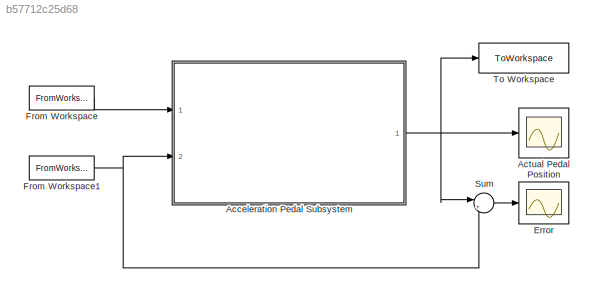
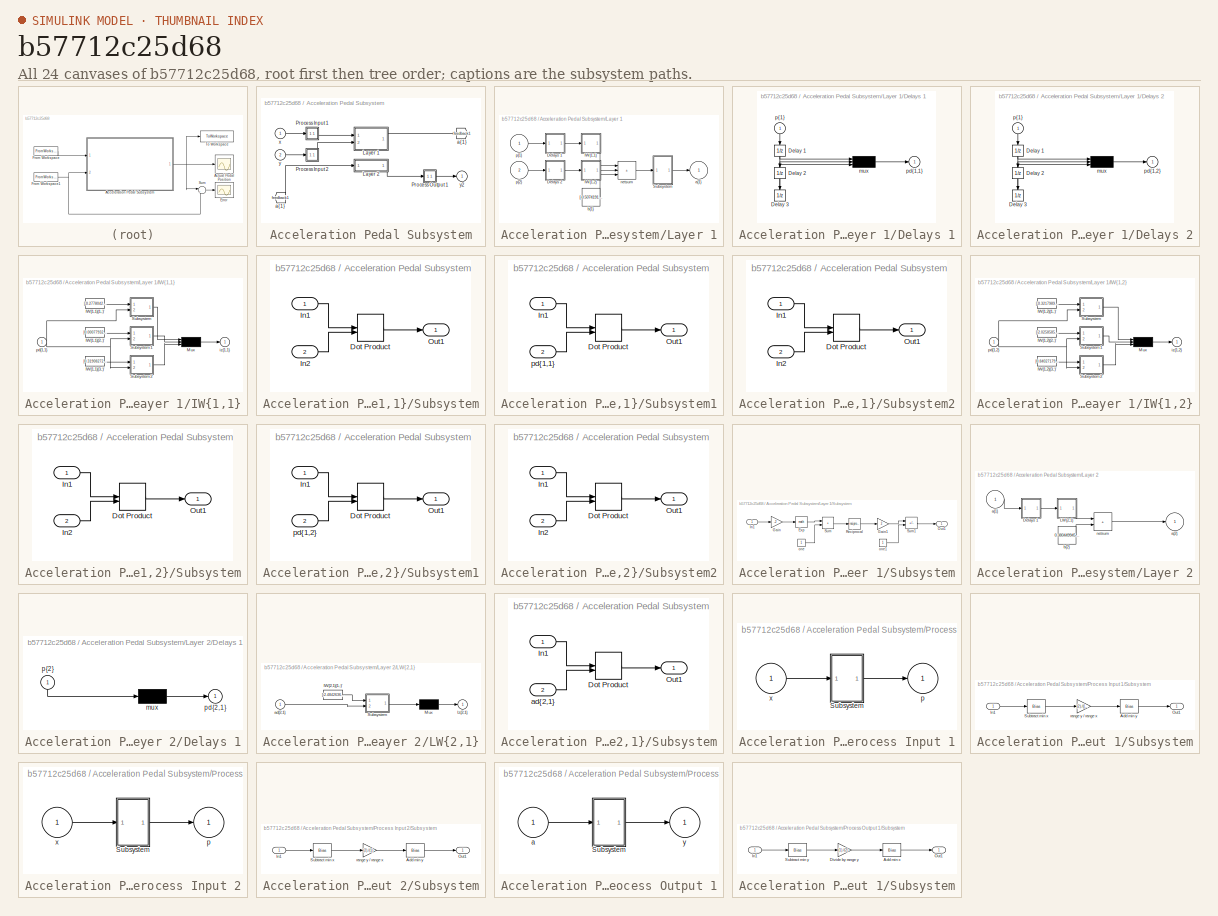
[diagram: thumbnail index - all 24 canvases of the model, root first then tree order]
MODEL slx_b57712c25d68
KIND model
CONFIG AbsTol = auto
CONFIG EnableMultiTasking = off
CONFIG FixedStep = auto
CONFIG MaxStep = auto
CONFIG MinStep = auto
CONFIG RelTol = 1e-3
CONFIG SampleTimeConstraint = Unconstrained
CONFIG SolverName = VariableStepAuto
CONFIG StartTime = 0.0
CONFIG StopTime = 25
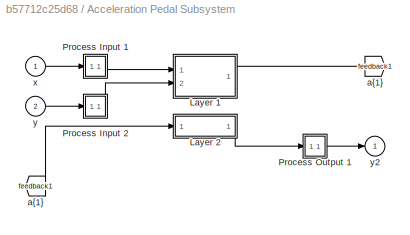
BLOCK [SubSystem] Acceleration Pedal Subsystem
  Ports = [2, 1]
  RequestExecContextInheritance = off
BLOCK [From] Acceleration Pedal Subsystem/ a{1} 
  GotoTag = feedback1
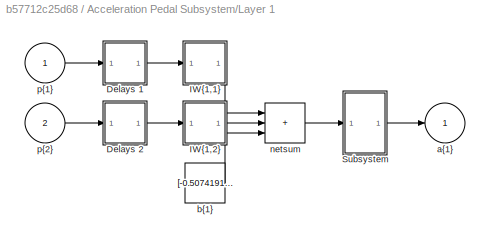
BLOCK [SubSystem] Acceleration Pedal Subsystem/Layer 1
  Ports = [2, 1]
  RequestExecContextInheritance = off
BLOCK [SubSystem] Acceleration Pedal Subsystem/Layer 1/Delays 1
  Ports = [1, 1]
  RequestExecContextInheritance = off
BLOCK [UnitDelay] Acceleration Pedal Subsystem/Layer 1/Delays 1/Delay 1
  InitialCondition = pi_input_1_delayed_1
  NameLocation = left
  SampleTime = -1
BLOCK [UnitDelay] Acceleration Pedal Subsystem/Layer 1/Delays 1/Delay 2
  InitialCondition = pi_input_1_delayed_2
  NameLocation = left
  SampleTime = -1
BLOCK [UnitDelay] Acceleration Pedal Subsystem/Layer 1/Delays 1/Delay 3
  InitialCondition = pi_input_1_delayed_3
  NameLocation = left
  SampleTime = -1
BLOCK [Mux] Acceleration Pedal Subsystem/Layer 1/Delays 1/mux
  Inputs = 3
  Ports = [3, 1]
BLOCK [Outport] Acceleration Pedal Subsystem/Layer 1/Delays 1/pd{1,1}
BLOCK [Inport] Acceleration Pedal Subsystem/Layer 1/Delays 1/p{1}
  NameLocation = left
  PortDimensions = 2
BLOCK [SubSystem] Acceleration Pedal Subsystem/Layer 1/Delays 2
  Ports = [1, 1]
  RequestExecContextInheritance = off
BLOCK [UnitDelay] Acceleration Pedal Subsystem/Layer 1/Delays 2/Delay 1
  InitialCondition = pi_input_2_delayed_1
  NameLocation = left
  SampleTime = -1
BLOCK [UnitDelay] Acceleration Pedal Subsystem/Layer 1/Delays 2/Delay 2
  InitialCondition = pi_input_2_delayed_2
  NameLocation = left
  SampleTime = -1
BLOCK [UnitDelay] Acceleration Pedal Subsystem/Layer 1/Delays 2/Delay 3
  InitialCondition = pi_input_2_delayed_3
  NameLocation = left
  SampleTime = -1
BLOCK [Mux] Acceleration Pedal Subsystem/Layer 1/Delays 2/mux
  Inputs = 3
  Ports = [3, 1]
BLOCK [Outport] Acceleration Pedal Subsystem/Layer 1/Delays 2/pd{1,2}
BLOCK [Inport] Acceleration Pedal Subsystem/Layer 1/Delays 2/p{1}
  NameLocation = left
  PortDimensions = 1
BLOCK [SubSystem] Acceleration Pedal Subsystem/Layer 1/IW{1,1}
  Ports = [1, 1]
  RequestExecContextInheritance = off
BLOCK [Constant] Acceleration Pedal Subsystem/Layer 1/IW{1,1}/IW{1,1}(1,:)'
  Value = [-0.27780427928569650930512580089271068572998046875;-0.530387799454654640385342645458877086639404296875;-0.1675928825842626646025479431045823730528354644775390625;0.01434177551750091816895604779347195290029048919677734375;0.135746573068681486429198912446736358106136322021484375;0.347706666370438510771379014840931631624698638916015625]
BLOCK [Constant] Acceleration Pedal Subsystem/Layer 1/IW{1,1}/IW{1,1}(2,:)'
  Value = [0.000779328165870853757819791685079735543695278465747833251953125;-0.5062741964820360873744675700436346232891082763671875;-0.12584321230279627013004528635065071284770965576171875;0.1840274498246561030168066963597084395587444305419921875;0.394298779481542849278952189706615172326564788818359375;1.0379498510368725394670263995067216455936431884765625]
BLOCK [Constant] Acceleration Pedal Subsystem/Layer 1/IW{1,1}/IW{1,1}(3,:)'
  Value = [0.31908272704775664241338972715311683714389801025390625;1.07785126730998825905771809630095958709716796875;0.339102541072019036949569681382854469120502471923828125;-0.140804755123989988607746681736898608505725860595703125;-0.4924515532211224400072069329326041042804718017578125;-1.0364187164545251018665794617845676839351654052734375]
BLOCK [Mux] Acceleration Pedal Subsystem/Layer 1/IW{1,1}/Mux
  Inputs = 3
  Ports = [3, 1]
BLOCK [SubSystem] Acceleration Pedal Subsystem/Layer 1/IW{1,1}/Subsystem
  Ports = [2, 1]
  RequestExecContextInheritance = off
BLOCK [DotProduct] Acceleration Pedal Subsystem/Layer 1/IW{1,1}/Subsystem/Dot Product
  OutDataTypeStr = Inherit: Inherit via internal rule
BLOCK [Inport] Acceleration Pedal Subsystem/Layer 1/IW{1,1}/Subsystem/In1
BLOCK [Inport] Acceleration Pedal Subsystem/Layer 1/IW{1,1}/Subsystem/In2
  Port = 2
BLOCK [Outport] Acceleration Pedal Subsystem/Layer 1/IW{1,1}/Subsystem/Out1
BLOCK [SubSystem] Acceleration Pedal Subsystem/Layer 1/IW{1,1}/Subsystem1
  Ports = [2, 1]
  RequestExecContextInheritance = off
BLOCK [DotProduct] Acceleration Pedal Subsystem/Layer 1/IW{1,1}/Subsystem1/Dot Product
  OutDataTypeStr = Inherit: Inherit via internal rule
BLOCK [Inport] Acceleration Pedal Subsystem/Layer 1/IW{1,1}/Subsystem1/In1
BLOCK [Outport] Acceleration Pedal Subsystem/Layer 1/IW{1,1}/Subsystem1/Out1
BLOCK [Inport] Acceleration Pedal Subsystem/Layer 1/IW{1,1}/Subsystem1/pd{1,1}
  Port = 2
BLOCK [SubSystem] Acceleration Pedal Subsystem/Layer 1/IW{1,1}/Subsystem2
  Ports = [2, 1]
  RequestExecContextInheritance = off
BLOCK [DotProduct] Acceleration Pedal Subsystem/Layer 1/IW{1,1}/Subsystem2/Dot Product
  OutDataTypeStr = Inherit: Inherit via internal rule
BLOCK [Inport] Acceleration Pedal Subsystem/Layer 1/IW{1,1}/Subsystem2/In1
BLOCK [Inport] Acceleration Pedal Subsystem/Layer 1/IW{1,1}/Subsystem2/In2
  Port = 2
BLOCK [Outport] Acceleration Pedal Subsystem/Layer 1/IW{1,1}/Subsystem2/Out1
BLOCK [Outport] Acceleration Pedal Subsystem/Layer 1/IW{1,1}/iz{1,1}
BLOCK [Inport] Acceleration Pedal Subsystem/Layer 1/IW{1,1}/pd{1,1}
  PortDimensions = 6
BLOCK [SubSystem] Acceleration Pedal Subsystem/Layer 1/IW{1,2}
  Ports = [1, 1]
  RequestExecContextInheritance = off
BLOCK [Constant] Acceleration Pedal Subsystem/Layer 1/IW{1,2}/IW{1,2}(1,:)'
  Value = [-0.321798974068076837351526364727760665118694305419921875;0.2717602710227631224171318535809405148029327392578125;0.0196096700164932156995600820437175570987164974212646484375]
BLOCK [Constant] Acceleration Pedal Subsystem/Layer 1/IW{1,2}/IW{1,2}(2,:)'
  Value = [-2.025858588581026520358818743261508643627166748046875;-0.2739092511861158651953473963658325374126434326171875;0.62536308620602742980310040366020984947681427001953125]
BLOCK [Constant] Acceleration Pedal Subsystem/Layer 1/IW{1,2}/IW{1,2}(3,:)'
  Value = [0.84027179617546499112989977220422588288784027099609375;-0.71546572748860015611427343174000270664691925048828125;-0.093688969355389895010688405818655155599117279052734375]
BLOCK [Mux] Acceleration Pedal Subsystem/Layer 1/IW{1,2}/Mux
  Inputs = 3
  Ports = [3, 1]
BLOCK [SubSystem] Acceleration Pedal Subsystem/Layer 1/IW{1,2}/Subsystem
  Ports = [2, 1]
  RequestExecContextInheritance = off
BLOCK [DotProduct] Acceleration Pedal Subsystem/Layer 1/IW{1,2}/Subsystem/Dot Product
  OutDataTypeStr = Inherit: Inherit via internal rule
BLOCK [Inport] Acceleration Pedal Subsystem/Layer 1/IW{1,2}/Subsystem/In1
BLOCK [Inport] Acceleration Pedal Subsystem/Layer 1/IW{1,2}/Subsystem/In2
  Port = 2
BLOCK [Outport] Acceleration Pedal Subsystem/Layer 1/IW{1,2}/Subsystem/Out1
BLOCK [SubSystem] Acceleration Pedal Subsystem/Layer 1/IW{1,2}/Subsystem1
  Ports = [2, 1]
  RequestExecContextInheritance = off
BLOCK [DotProduct] Acceleration Pedal Subsystem/Layer 1/IW{1,2}/Subsystem1/Dot Product
  OutDataTypeStr = Inherit: Inherit via internal rule
BLOCK [Inport] Acceleration Pedal Subsystem/Layer 1/IW{1,2}/Subsystem1/In1
BLOCK [Outport] Acceleration Pedal Subsystem/Layer 1/IW{1,2}/Subsystem1/Out1
BLOCK [Inport] Acceleration Pedal Subsystem/Layer 1/IW{1,2}/Subsystem1/pd{1,2}
  Port = 2
BLOCK [SubSystem] Acceleration Pedal Subsystem/Layer 1/IW{1,2}/Subsystem2
  Ports = [2, 1]
  RequestExecContextInheritance = off
BLOCK [DotProduct] Acceleration Pedal Subsystem/Layer 1/IW{1,2}/Subsystem2/Dot Product
  OutDataTypeStr = Inherit: Inherit via internal rule
BLOCK [Inport] Acceleration Pedal Subsystem/Layer 1/IW{1,2}/Subsystem2/In1
BLOCK [Inport] Acceleration Pedal Subsystem/Layer 1/IW{1,2}/Subsystem2/In2
  Port = 2
BLOCK [Outport] Acceleration Pedal Subsystem/Layer 1/IW{1,2}/Subsystem2/Out1
BLOCK [Outport] Acceleration Pedal Subsystem/Layer 1/IW{1,2}/iz{1,2}
BLOCK [Inport] Acceleration Pedal Subsystem/Layer 1/IW{1,2}/pd{1,2}
  PortDimensions = 3
BLOCK [SubSystem] Acceleration Pedal Subsystem/Layer 1/Subsystem
  Ports = [1, 1]
  RequestExecContextInheritance = off
BLOCK [Math] Acceleration Pedal Subsystem/Layer 1/Subsystem/Exp
  Ports = [1, 1]
  SignedPower = on
BLOCK [Gain] Acceleration Pedal Subsystem/Layer 1/Subsystem/Gain
  Gain = -2
  OutDataTypeStr = Inherit: Same as input
  ParamDataTypeStr = Inherit: Same as input
  SaturateOnIntegerOverflow = on
BLOCK [Gain] Acceleration Pedal Subsystem/Layer 1/Subsystem/Gain1
  Gain = 2
  OutDataTypeStr = Inherit: Same as input
  ParamDataTypeStr = Inherit: Same as input
  SaturateOnIntegerOverflow = on
BLOCK [Inport] Acceleration Pedal Subsystem/Layer 1/Subsystem/In1
BLOCK [Outport] Acceleration Pedal Subsystem/Layer 1/Subsystem/Out1
BLOCK [Math] Acceleration Pedal Subsystem/Layer 1/Subsystem/Reciprocal
  Operator = reciprocal
  Ports = [1, 1]
  SignedPower = on
BLOCK [Sum] Acceleration Pedal Subsystem/Layer 1/Subsystem/Sum
  IconShape = rectangular
  InputSameDT = on
  OutDataTypeStr = Inherit: Same as first input
  Ports = [2, 1]
  SaturateOnIntegerOverflow = on
BLOCK [Sum] Acceleration Pedal Subsystem/Layer 1/Subsystem/Sum1
  IconShape = rectangular
  InputSameDT = on
  Inputs = +-
  OutDataTypeStr = Inherit: Same as first input
  Ports = [2, 1]
  SaturateOnIntegerOverflow = on
BLOCK [Constant] Acceleration Pedal Subsystem/Layer 1/Subsystem/one
BLOCK [Constant] Acceleration Pedal Subsystem/Layer 1/Subsystem/one1
BLOCK [Outport] Acceleration Pedal Subsystem/Layer 1/a{1}
  InitialOutput = [0;0;0]
BLOCK [Constant] Acceleration Pedal Subsystem/Layer 1/b{1}
  Value = [-0.50741911929243055379146198902162723243236541748046875;1.2753406289783832949780162380193360149860382080078125;0.75629337857566614200521826205658726394176483154296875]
BLOCK [Sum] Acceleration Pedal Subsystem/Layer 1/netsum
  IconShape = rectangular
  InputSameDT = on
  Inputs = 3
  OutDataTypeStr = Inherit: Same as first input
  Ports = [3, 1]
  SaturateOnIntegerOverflow = on
BLOCK [Inport] Acceleration Pedal Subsystem/Layer 1/p{1}
  PortDimensions = 2
BLOCK [Inport] Acceleration Pedal Subsystem/Layer 1/p{2}
  Port = 2
  PortDimensions = 1
BLOCK [SubSystem] Acceleration Pedal Subsystem/Layer 2
  Ports = [1, 1]
  RequestExecContextInheritance = off
BLOCK [SubSystem] Acceleration Pedal Subsystem/Layer 2/Delays 1
  Ports = [1, 1]
  RequestExecContextInheritance = off
BLOCK [Mux] Acceleration Pedal Subsystem/Layer 2/Delays 1/mux
  Inputs = 1
  Ports = [1, 1]
BLOCK [Outport] Acceleration Pedal Subsystem/Layer 2/Delays 1/pd{2,1}
BLOCK [Inport] Acceleration Pedal Subsystem/Layer 2/Delays 1/p{2}
  NameLocation = left
  PortDimensions = 3
BLOCK [SubSystem] Acceleration Pedal Subsystem/Layer 2/LW{2,1}
  Ports = [1, 1]
  RequestExecContextInheritance = off
BLOCK [Constant] Acceleration Pedal Subsystem/Layer 2/LW{2,1}/IW{2,1}(1,:)'
  Value = [-2.484263628807823476307703458587639033794403076171875;-0.5963104217811550089578531697043217718601226806640625;-1.40614905240369392203092502313666045665740966796875]
BLOCK [Mux] Acceleration Pedal Subsystem/Layer 2/LW{2,1}/Mux
  Inputs = 1
  Ports = [1, 1]
BLOCK [SubSystem] Acceleration Pedal Subsystem/Layer 2/LW{2,1}/Subsystem
  Ports = [2, 1]
  RequestExecContextInheritance = off
BLOCK [DotProduct] Acceleration Pedal Subsystem/Layer 2/LW{2,1}/Subsystem/Dot Product
  OutDataTypeStr = Inherit: Inherit via internal rule
BLOCK [Inport] Acceleration Pedal Subsystem/Layer 2/LW{2,1}/Subsystem/In1
BLOCK [Outport] Acceleration Pedal Subsystem/Layer 2/LW{2,1}/Subsystem/Out1
BLOCK [Inport] Acceleration Pedal Subsystem/Layer 2/LW{2,1}/Subsystem/ad{2,1}
  Port = 2
BLOCK [Inport] Acceleration Pedal Subsystem/Layer 2/LW{2,1}/ad{2,1}
  PortDimensions = 3
BLOCK [Outport] Acceleration Pedal Subsystem/Layer 2/LW{2,1}/lz{2,1}
BLOCK [Inport] Acceleration Pedal Subsystem/Layer 2/a{1} 
  PortDimensions = 3
BLOCK [Outport] Acceleration Pedal Subsystem/Layer 2/a{2}
  InitialOutput = 0
BLOCK [Constant] Acceleration Pedal Subsystem/Layer 2/b{2}
  Value = 0.38044994553090927258409692512941546738147735595703125
BLOCK [Sum] Acceleration Pedal Subsystem/Layer 2/netsum
  IconShape = rectangular
  InputSameDT = on
  Inputs = 2
  OutDataTypeStr = Inherit: Same as first input
  Ports = [2, 1]
  SaturateOnIntegerOverflow = on
BLOCK [SubSystem] Acceleration Pedal Subsystem/Process Input 1
  Ports = [1, 1]
  RequestExecContextInheritance = off
BLOCK [SubSystem] Acceleration Pedal Subsystem/Process Input 1/Subsystem
  Ports = [1, 1]
  RequestExecContextInheritance = off
BLOCK [Bias] Acceleration Pedal Subsystem/Process Input 1/Subsystem/Add min y
  Bias = -1
  SaturateOnIntegerOverflow = off
BLOCK [Inport] Acceleration Pedal Subsystem/Process Input 1/Subsystem/In1
BLOCK [Outport] Acceleration Pedal Subsystem/Process Input 1/Subsystem/Out1
BLOCK [Bias] Acceleration Pedal Subsystem/Process Input 1/Subsystem/Subtract min x
  Bias = -[1.5929999999999999715782905696;0.790000000000000035527136788005]
  SaturateOnIntegerOverflow = off
BLOCK [Gain] Acceleration Pedal Subsystem/Process Input 1/Subsystem/range y // range x
  Gain = (2)./([4.51100000000000012079226507922;3.7459999999999999964472863212]-[1.5929999999999999715782905696;0.790000000000000035527136788005])
BLOCK [Outport] Acceleration Pedal Subsystem/Process Input 1/p
  PortDimensions = 2
BLOCK [Inport] Acceleration Pedal Subsystem/Process Input 1/x
  PortDimensions = 2
BLOCK [SubSystem] Acceleration Pedal Subsystem/Process Input 2
  Ports = [1, 1]
  RequestExecContextInheritance = off
BLOCK [SubSystem] Acceleration Pedal Subsystem/Process Input 2/Subsystem
  Ports = [1, 1]
  RequestExecContextInheritance = off
BLOCK [Bias] Acceleration Pedal Subsystem/Process Input 2/Subsystem/Add min y
  Bias = -1
  SaturateOnIntegerOverflow = off
BLOCK [Inport] Acceleration Pedal Subsystem/Process Input 2/Subsystem/In1
BLOCK [Outport] Acceleration Pedal Subsystem/Process Input 2/Subsystem/Out1
BLOCK [Bias] Acceleration Pedal Subsystem/Process Input 2/Subsystem/Subtract min x
  Bias = -0
  SaturateOnIntegerOverflow = off
BLOCK [Gain] Acceleration Pedal Subsystem/Process Input 2/Subsystem/range y // range x
  Gain = (2)./(1)
BLOCK [Outport] Acceleration Pedal Subsystem/Process Input 2/p
  PortDimensions = 1
BLOCK [Inport] Acceleration Pedal Subsystem/Process Input 2/x
  PortDimensions = 1
BLOCK [SubSystem] Acceleration Pedal Subsystem/Process Output 1
  Ports = [1, 1]
  RequestExecContextInheritance = off
BLOCK [SubSystem] Acceleration Pedal Subsystem/Process Output 1/Subsystem
  Ports = [1, 1]
  RequestExecContextInheritance = off
BLOCK [Bias] Acceleration Pedal Subsystem/Process Output 1/Subsystem/Add min x
  SaturateOnIntegerOverflow = off
BLOCK [Gain] Acceleration Pedal Subsystem/Process Output 1/Subsystem/Divide by range y
  Gain = (1)./(2)
BLOCK [Inport] Acceleration Pedal Subsystem/Process Output 1/Subsystem/In1
BLOCK [Outport] Acceleration Pedal Subsystem/Process Output 1/Subsystem/Out1
BLOCK [Bias] Acceleration Pedal Subsystem/Process Output 1/Subsystem/Subtract min y
  Bias = 1
  SaturateOnIntegerOverflow = off
BLOCK [Inport] Acceleration Pedal Subsystem/Process Output 1/a
  PortDimensions = 1
BLOCK [Outport] Acceleration Pedal Subsystem/Process Output 1/y
  PortDimensions = 1
BLOCK [Goto] Acceleration Pedal Subsystem/a{1}
  GotoTag = feedback1
BLOCK [Inport] Acceleration Pedal Subsystem/x
  PortDimensions = 2
BLOCK [Inport] Acceleration Pedal Subsystem/y
  Port = 2
  PortDimensions = 1
BLOCK [Outport] Acceleration Pedal Subsystem/y2
  InitialOutput = 0
BLOCK [Scope] Actual Pedal Position
  Floating = off
  NumInputPorts = 1
  Ports = [1]
  ScopeSpecificationString = Simulink.scopes.TimeScopeBlockCfg('CurrentConfiguration', extmgr.ConfigurationSet(extmgr.Configuration('Core','General UI',true),extmgr.Configuration('Core','Source UI',true),extmgr.Configuration('Sources','WiredSimulink',true),extmgr.Configuration('Visuals','Time Domain',true,'SerializedDisplays',{struct('MinYLimReal','-0.1275','MaxYLimReal','1.13187','YLabelReal','','MinYLimMag','0.00000','MaxYL...<+1356ch>
BLOCK [Scope] Error
  Floating = off
  NumInputPorts = 1
  Ports = [1]
  ScopeSpecificationString = Simulink.scopes.TimeScopeBlockCfg('CurrentConfiguration', extmgr.ConfigurationSet(extmgr.Configuration('Core','General UI',true),extmgr.Configuration('Core','Source UI',true),extmgr.Configuration('Sources','WiredSimulink',true,'DataLoggingVariableName','ScopeData2'),extmgr.Configuration('Visuals','Time Domain',true,'SerializedDisplays',{struct('MinYLimReal','-0.07627','MaxYLimReal','0.56202','YLab...<+1381ch>
BLOCK [FromWorkspace] From Workspace
  SampleTime = 0.033
  VariableName = accellog
BLOCK [FromWorkspace] From Workspace1
  SampleTime = 0.033
  VariableName = accelout
BLOCK [Sum] Sum
  Inputs = |+-
  Ports = [2, 1]
BLOCK [ToWorkspace] To Workspace
  FixptAsFi = on
  MaxDataPoints = inf
  Ports = [1]
  SampleTime = -1
  SaveFormat = Timeseries
  VariableName = actualpedal
LINE Acceleration Pedal Subsystem/ a{1} :1 -> Acceleration Pedal Subsystem/Layer 2:1
NET Acceleration Pedal Subsystem/Layer 1/Delays 1/Delay 1:1 -> Acceleration Pedal Subsystem/Layer 1/Delays 1/Delay 2:1, Acceleration Pedal Subsystem/Layer 1/Delays 1/mux:1
NET Acceleration Pedal Subsystem/Layer 1/Delays 1/Delay 2:1 -> Acceleration Pedal Subsystem/Layer 1/Delays 1/Delay 3:1, Acceleration Pedal Subsystem/Layer 1/Delays 1/mux:2
LINE Acceleration Pedal Subsystem/Layer 1/Delays 1/Delay 3:1 -> Acceleration Pedal Subsystem/Layer 1/Delays 1/mux:3
LINE Acceleration Pedal Subsystem/Layer 1/Delays 1/mux:1 -> Acceleration Pedal Subsystem/Layer 1/Delays 1/pd{1,1}:1
LINE Acceleration Pedal Subsystem/Layer 1/Delays 1/p{1}:1 -> Acceleration Pedal Subsystem/Layer 1/Delays 1/Delay 1:1
LINE Acceleration Pedal Subsystem/Layer 1/Delays 1:1 -> Acceleration Pedal Subsystem/Layer 1/IW{1,1}:1
NET Acceleration Pedal Subsystem/Layer 1/Delays 2/Delay 1:1 -> Acceleration Pedal Subsystem/Layer 1/Delays 2/Delay 2:1, Acceleration Pedal Subsystem/Layer 1/Delays 2/mux:1
NET Acceleration Pedal Subsystem/Layer 1/Delays 2/Delay 2:1 -> Acceleration Pedal Subsystem/Layer 1/Delays 2/Delay 3:1, Acceleration Pedal Subsystem/Layer 1/Delays 2/mux:2
LINE Acceleration Pedal Subsystem/Layer 1/Delays 2/Delay 3:1 -> Acceleration Pedal Subsystem/Layer 1/Delays 2/mux:3
LINE Acceleration Pedal Subsystem/Layer 1/Delays 2/mux:1 -> Acceleration Pedal Subsystem/Layer 1/Delays 2/pd{1,2}:1
LINE Acceleration Pedal Subsystem/Layer 1/Delays 2/p{1}:1 -> Acceleration Pedal Subsystem/Layer 1/Delays 2/Delay 1:1
LINE Acceleration Pedal Subsystem/Layer 1/Delays 2:1 -> Acceleration Pedal Subsystem/Layer 1/IW{1,2}:1
LINE Acceleration Pedal Subsystem/Layer 1/IW{1,1}/IW{1,1}(1,:)':1 -> Acceleration Pedal Subsystem/Layer 1/IW{1,1}/Subsystem:1
LINE Acceleration Pedal Subsystem/Layer 1/IW{1,1}/IW{1,1}(2,:)':1 -> Acceleration Pedal Subsystem/Layer 1/IW{1,1}/Subsystem1:1
LINE Acceleration Pedal Subsystem/Layer 1/IW{1,1}/IW{1,1}(3,:)':1 -> Acceleration Pedal Subsystem/Layer 1/IW{1,1}/Subsystem2:1
LINE Acceleration Pedal Subsystem/Layer 1/IW{1,1}/Mux:1 -> Acceleration Pedal Subsystem/Layer 1/IW{1,1}/iz{1,1}:1
LINE Acceleration Pedal Subsystem/Layer 1/IW{1,1}/Subsystem/Dot Product:1 -> Acceleration Pedal Subsystem/Layer 1/IW{1,1}/Subsystem/Out1:1
LINE Acceleration Pedal Subsystem/Layer 1/IW{1,1}/Subsystem/In1:1 -> Acceleration Pedal Subsystem/Layer 1/IW{1,1}/Subsystem/Dot Product:1
LINE Acceleration Pedal Subsystem/Layer 1/IW{1,1}/Subsystem/In2:1 -> Acceleration Pedal Subsystem/Layer 1/IW{1,1}/Subsystem/Dot Product:2
LINE Acceleration Pedal Subsystem/Layer 1/IW{1,1}/Subsystem1/Dot Product:1 -> Acceleration Pedal Subsystem/Layer 1/IW{1,1}/Subsystem1/Out1:1
LINE Acceleration Pedal Subsystem/Layer 1/IW{1,1}/Subsystem1/In1:1 -> Acceleration Pedal Subsystem/Layer 1/IW{1,1}/Subsystem1/Dot Product:1
LINE Acceleration Pedal Subsystem/Layer 1/IW{1,1}/Subsystem1/pd{1,1}:1 -> Acceleration Pedal Subsystem/Layer 1/IW{1,1}/Subsystem1/Dot Product:2
LINE Acceleration Pedal Subsystem/Layer 1/IW{1,1}/Subsystem1:1 -> Acceleration Pedal Subsystem/Layer 1/IW{1,1}/Mux:2
LINE Acceleration Pedal Subsystem/Layer 1/IW{1,1}/Subsystem2/Dot Product:1 -> Acceleration Pedal Subsystem/Layer 1/IW{1,1}/Subsystem2/Out1:1
LINE Acceleration Pedal Subsystem/Layer 1/IW{1,1}/Subsystem2/In1:1 -> Acceleration Pedal Subsystem/Layer 1/IW{1,1}/Subsystem2/Dot Product:1
LINE Acceleration Pedal Subsystem/Layer 1/IW{1,1}/Subsystem2/In2:1 -> Acceleration Pedal Subsystem/Layer 1/IW{1,1}/Subsystem2/Dot Product:2
LINE Acceleration Pedal Subsystem/Layer 1/IW{1,1}/Subsystem2:1 -> Acceleration Pedal Subsystem/Layer 1/IW{1,1}/Mux:3
LINE Acceleration Pedal Subsystem/Layer 1/IW{1,1}/Subsystem:1 -> Acceleration Pedal Subsystem/Layer 1/IW{1,1}/Mux:1
NET Acceleration Pedal Subsystem/Layer 1/IW{1,1}/pd{1,1}:1 -> Acceleration Pedal Subsystem/Layer 1/IW{1,1}/Subsystem1:2, Acceleration Pedal Subsystem/Layer 1/IW{1,1}/Subsystem2:2, Acceleration Pedal Subsystem/Layer 1/IW{1,1}/Subsystem:2
LINE Acceleration Pedal Subsystem/Layer 1/IW{1,1}:1 -> Acceleration Pedal Subsystem/Layer 1/netsum:1
LINE Acceleration Pedal Subsystem/Layer 1/IW{1,2}/IW{1,2}(1,:)':1 -> Acceleration Pedal Subsystem/Layer 1/IW{1,2}/Subsystem:1
LINE Acceleration Pedal Subsystem/Layer 1/IW{1,2}/IW{1,2}(2,:)':1 -> Acceleration Pedal Subsystem/Layer 1/IW{1,2}/Subsystem1:1
LINE Acceleration Pedal Subsystem/Layer 1/IW{1,2}/IW{1,2}(3,:)':1 -> Acceleration Pedal Subsystem/Layer 1/IW{1,2}/Subsystem2:1
LINE Acceleration Pedal Subsystem/Layer 1/IW{1,2}/Mux:1 -> Acceleration Pedal Subsystem/Layer 1/IW{1,2}/iz{1,2}:1
LINE Acceleration Pedal Subsystem/Layer 1/IW{1,2}/Subsystem/Dot Product:1 -> Acceleration Pedal Subsystem/Layer 1/IW{1,2}/Subsystem/Out1:1
LINE Acceleration Pedal Subsystem/Layer 1/IW{1,2}/Subsystem/In1:1 -> Acceleration Pedal Subsystem/Layer 1/IW{1,2}/Subsystem/Dot Product:1
LINE Acceleration Pedal Subsystem/Layer 1/IW{1,2}/Subsystem/In2:1 -> Acceleration Pedal Subsystem/Layer 1/IW{1,2}/Subsystem/Dot Product:2
LINE Acceleration Pedal Subsystem/Layer 1/IW{1,2}/Subsystem1/Dot Product:1 -> Acceleration Pedal Subsystem/Layer 1/IW{1,2}/Subsystem1/Out1:1
LINE Acceleration Pedal Subsystem/Layer 1/IW{1,2}/Subsystem1/In1:1 -> Acceleration Pedal Subsystem/Layer 1/IW{1,2}/Subsystem1/Dot Product:1
LINE Acceleration Pedal Subsystem/Layer 1/IW{1,2}/Subsystem1/pd{1,2}:1 -> Acceleration Pedal Subsystem/Layer 1/IW{1,2}/Subsystem1/Dot Product:2
LINE Acceleration Pedal Subsystem/Layer 1/IW{1,2}/Subsystem1:1 -> Acceleration Pedal Subsystem/Layer 1/IW{1,2}/Mux:2
LINE Acceleration Pedal Subsystem/Layer 1/IW{1,2}/Subsystem2/Dot Product:1 -> Acceleration Pedal Subsystem/Layer 1/IW{1,2}/Subsystem2/Out1:1
LINE Acceleration Pedal Subsystem/Layer 1/IW{1,2}/Subsystem2/In1:1 -> Acceleration Pedal Subsystem/Layer 1/IW{1,2}/Subsystem2/Dot Product:1
LINE Acceleration Pedal Subsystem/Layer 1/IW{1,2}/Subsystem2/In2:1 -> Acceleration Pedal Subsystem/Layer 1/IW{1,2}/Subsystem2/Dot Product:2
LINE Acceleration Pedal Subsystem/Layer 1/IW{1,2}/Subsystem2:1 -> Acceleration Pedal Subsystem/Layer 1/IW{1,2}/Mux:3
LINE Acceleration Pedal Subsystem/Layer 1/IW{1,2}/Subsystem:1 -> Acceleration Pedal Subsystem/Layer 1/IW{1,2}/Mux:1
NET Acceleration Pedal Subsystem/Layer 1/IW{1,2}/pd{1,2}:1 -> Acceleration Pedal Subsystem/Layer 1/IW{1,2}/Subsystem1:2, Acceleration Pedal Subsystem/Layer 1/IW{1,2}/Subsystem2:2, Acceleration Pedal Subsystem/Layer 1/IW{1,2}/Subsystem:2
LINE Acceleration Pedal Subsystem/Layer 1/IW{1,2}:1 -> Acceleration Pedal Subsystem/Layer 1/netsum:2
LINE Acceleration Pedal Subsystem/Layer 1/Subsystem/Exp:1 -> Acceleration Pedal Subsystem/Layer 1/Subsystem/Sum:1
LINE Acceleration Pedal Subsystem/Layer 1/Subsystem/Gain1:1 -> Acceleration Pedal Subsystem/Layer 1/Subsystem/Sum1:1
LINE Acceleration Pedal Subsystem/Layer 1/Subsystem/Gain:1 -> Acceleration Pedal Subsystem/Layer 1/Subsystem/Exp:1
LINE Acceleration Pedal Subsystem/Layer 1/Subsystem/In1:1 -> Acceleration Pedal Subsystem/Layer 1/Subsystem/Gain:1
LINE Acceleration Pedal Subsystem/Layer 1/Subsystem/Reciprocal:1 -> Acceleration Pedal Subsystem/Layer 1/Subsystem/Gain1:1
LINE Acceleration Pedal Subsystem/Layer 1/Subsystem/Sum1:1 -> Acceleration Pedal Subsystem/Layer 1/Subsystem/Out1:1
LINE Acceleration Pedal Subsystem/Layer 1/Subsystem/Sum:1 -> Acceleration Pedal Subsystem/Layer 1/Subsystem/Reciprocal:1
LINE Acceleration Pedal Subsystem/Layer 1/Subsystem/one1:1 -> Acceleration Pedal Subsystem/Layer 1/Subsystem/Sum1:2
LINE Acceleration Pedal Subsystem/Layer 1/Subsystem/one:1 -> Acceleration Pedal Subsystem/Layer 1/Subsystem/Sum:2
LINE Acceleration Pedal Subsystem/Layer 1/Subsystem:1 -> Acceleration Pedal Subsystem/Layer 1/a{1}:1
LINE Acceleration Pedal Subsystem/Layer 1/b{1}:1 -> Acceleration Pedal Subsystem/Layer 1/netsum:3
LINE Acceleration Pedal Subsystem/Layer 1/netsum:1 -> Acceleration Pedal Subsystem/Layer 1/Subsystem:1
LINE Acceleration Pedal Subsystem/Layer 1/p{1}:1 -> Acceleration Pedal Subsystem/Layer 1/Delays 1:1
LINE Acceleration Pedal Subsystem/Layer 1/p{2}:1 -> Acceleration Pedal Subsystem/Layer 1/Delays 2:1
LINE Acceleration Pedal Subsystem/Layer 1:1 -> Acceleration Pedal Subsystem/a{1}:1
LINE Acceleration Pedal Subsystem/Layer 2/Delays 1/mux:1 -> Acceleration Pedal Subsystem/Layer 2/Delays 1/pd{2,1}:1
LINE Acceleration Pedal Subsystem/Layer 2/Delays 1/p{2}:1 -> Acceleration Pedal Subsystem/Layer 2/Delays 1/mux:1
LINE Acceleration Pedal Subsystem/Layer 2/Delays 1:1 -> Acceleration Pedal Subsystem/Layer 2/LW{2,1}:1
LINE Acceleration Pedal Subsystem/Layer 2/LW{2,1}/IW{2,1}(1,:)':1 -> Acceleration Pedal Subsystem/Layer 2/LW{2,1}/Subsystem:1
LINE Acceleration Pedal Subsystem/Layer 2/LW{2,1}/Mux:1 -> Acceleration Pedal Subsystem/Layer 2/LW{2,1}/lz{2,1}:1
LINE Acceleration Pedal Subsystem/Layer 2/LW{2,1}/Subsystem/Dot Product:1 -> Acceleration Pedal Subsystem/Layer 2/LW{2,1}/Subsystem/Out1:1
LINE Acceleration Pedal Subsystem/Layer 2/LW{2,1}/Subsystem/In1:1 -> Acceleration Pedal Subsystem/Layer 2/LW{2,1}/Subsystem/Dot Product:1
LINE Acceleration Pedal Subsystem/Layer 2/LW{2,1}/Subsystem/ad{2,1}:1 -> Acceleration Pedal Subsystem/Layer 2/LW{2,1}/Subsystem/Dot Product:2
LINE Acceleration Pedal Subsystem/Layer 2/LW{2,1}/Subsystem:1 -> Acceleration Pedal Subsystem/Layer 2/LW{2,1}/Mux:1
LINE Acceleration Pedal Subsystem/Layer 2/LW{2,1}/ad{2,1}:1 -> Acceleration Pedal Subsystem/Layer 2/LW{2,1}/Subsystem:2
LINE Acceleration Pedal Subsystem/Layer 2/LW{2,1}:1 -> Acceleration Pedal Subsystem/Layer 2/netsum:1
LINE Acceleration Pedal Subsystem/Layer 2/a{1} :1 -> Acceleration Pedal Subsystem/Layer 2/Delays 1:1
LINE Acceleration Pedal Subsystem/Layer 2/b{2}:1 -> Acceleration Pedal Subsystem/Layer 2/netsum:2
LINE Acceleration Pedal Subsystem/Layer 2/netsum:1 -> Acceleration Pedal Subsystem/Layer 2/a{2}:1
LINE Acceleration Pedal Subsystem/Layer 2:1 -> Acceleration Pedal Subsystem/Process Output 1:1
LINE Acceleration Pedal Subsystem/Process Input 1/Subsystem/Add min y:1 -> Acceleration Pedal Subsystem/Process Input 1/Subsystem/Out1:1
LINE Acceleration Pedal Subsystem/Process Input 1/Subsystem/In1:1 -> Acceleration Pedal Subsystem/Process Input 1/Subsystem/Subtract min x:1
LINE Acceleration Pedal Subsystem/Process Input 1/Subsystem/Subtract min x:1 -> Acceleration Pedal Subsystem/Process Input 1/Subsystem/range y // range x:1
LINE Acceleration Pedal Subsystem/Process Input 1/Subsystem/range y // range x:1 -> Acceleration Pedal Subsystem/Process Input 1/Subsystem/Add min y:1
LINE Acceleration Pedal Subsystem/Process Input 1/Subsystem:1 -> Acceleration Pedal Subsystem/Process Input 1/p:1
LINE Acceleration Pedal Subsystem/Process Input 1/x:1 -> Acceleration Pedal Subsystem/Process Input 1/Subsystem:1
LINE Acceleration Pedal Subsystem/Process Input 1:1 -> Acceleration Pedal Subsystem/Layer 1:1
LINE Acceleration Pedal Subsystem/Process Input 2/Subsystem/Add min y:1 -> Acceleration Pedal Subsystem/Process Input 2/Subsystem/Out1:1
LINE Acceleration Pedal Subsystem/Process Input 2/Subsystem/In1:1 -> Acceleration Pedal Subsystem/Process Input 2/Subsystem/Subtract min x:1
LINE Acceleration Pedal Subsystem/Process Input 2/Subsystem/Subtract min x:1 -> Acceleration Pedal Subsystem/Process Input 2/Subsystem/range y // range x:1
LINE Acceleration Pedal Subsystem/Process Input 2/Subsystem/range y // range x:1 -> Acceleration Pedal Subsystem/Process Input 2/Subsystem/Add min y:1
LINE Acceleration Pedal Subsystem/Process Input 2/Subsystem:1 -> Acceleration Pedal Subsystem/Process Input 2/p:1
LINE Acceleration Pedal Subsystem/Process Input 2/x:1 -> Acceleration Pedal Subsystem/Process Input 2/Subsystem:1
LINE Acceleration Pedal Subsystem/Process Input 2:1 -> Acceleration Pedal Subsystem/Layer 1:2
LINE Acceleration Pedal Subsystem/Process Output 1/Subsystem/Add min x:1 -> Acceleration Pedal Subsystem/Process Output 1/Subsystem/Out1:1
LINE Acceleration Pedal Subsystem/Process Output 1/Subsystem/Divide by range y:1 -> Acceleration Pedal Subsystem/Process Output 1/Subsystem/Add min x:1
LINE Acceleration Pedal Subsystem/Process Output 1/Subsystem/In1:1 -> Acceleration Pedal Subsystem/Process Output 1/Subsystem/Subtract min y:1
LINE Acceleration Pedal Subsystem/Process Output 1/Subsystem/Subtract min y:1 -> Acceleration Pedal Subsystem/Process Output 1/Subsystem/Divide by range y:1
LINE Acceleration Pedal Subsystem/Process Output 1/Subsystem:1 -> Acceleration Pedal Subsystem/Process Output 1/y:1
LINE Acceleration Pedal Subsystem/Process Output 1/a:1 -> Acceleration Pedal Subsystem/Process Output 1/Subsystem:1
LINE Acceleration Pedal Subsystem/Process Output 1:1 -> Acceleration Pedal Subsystem/y2:1
LINE Acceleration Pedal Subsystem/x:1 -> Acceleration Pedal Subsystem/Process Input 1:1
LINE Acceleration Pedal Subsystem/y:1 -> Acceleration Pedal Subsystem/Process Input 2:1
NET Acceleration Pedal Subsystem:1 -> Actual Pedal Position:1, Sum:1, To Workspace:1
NET From Workspace1:1 -> Acceleration Pedal Subsystem:2, Sum:2
LINE From Workspace:1 -> Acceleration Pedal Subsystem:1
LINE Sum:1 -> Error:1
note: NET lines group one-source signal fan-out (src -> all destinations, sorted); 1:1 wires keep LINE
